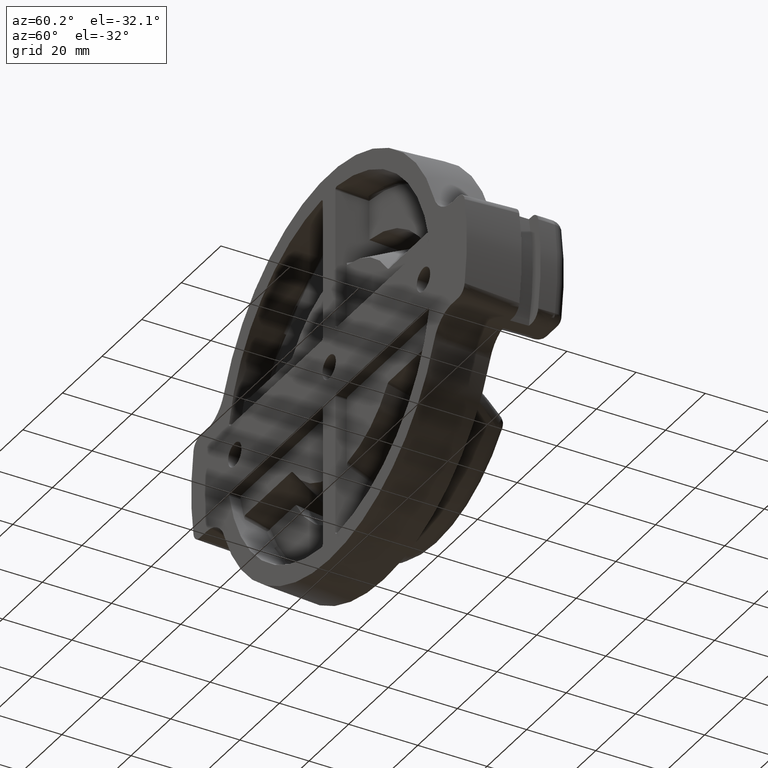
[diagram: clean part render]
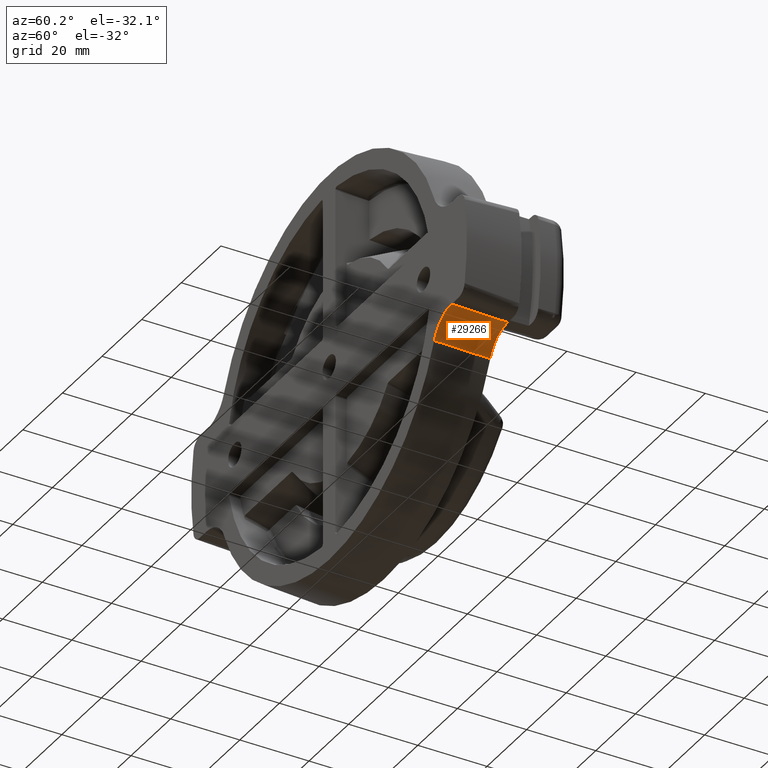
[diagram: same view with one face highlighted and labeled with its STEP entity id]
A machine part, auxiliary view. The second image highlights one B-rep face of the part: STEP entity #29266.
In plain terms, the highlighted face is a freeform B-spline surface patch.
Its self-contained STEP definition (entity closure, byte-faithful):
#1251 = CARTESIAN_POINT ( 'NONE',  ( 2.436986934027818700, 0.0000000000000000000, -0.5922451379481056300 ) ) ;
#1264 = CARTESIAN_POINT ( 'NONE',  ( 2.440569537981420300, 0.1006603059446233300, -0.5975205210446148400 ) ) ;
#1265 = CARTESIAN_POINT ( 'NONE',  ( 2.444144251946057000, 0.2013208922336435500, -0.6027959188333513700 ) ) ;
#1266 = CARTESIAN_POINT ( 'NONE',  ( 2.447711178982137500, 0.3019817533886757800, -0.6080713310272051200 ) ) ;
#1267 = CARTESIAN_POINT ( 'NONE',  ( 2.451526561823576400, 0.4096541892334511500, -0.6137142042798255900 ) ) ;
#1268 = CARTESIAN_POINT ( 'NONE',  ( 2.455333035201659800, 0.5173269402790694500, -0.6193570940514221400 ) ) ;
#1269 = CARTESIAN_POINT ( 'NONE',  ( 2.459130722433051200, 0.6250000000000000000, -0.6250000000000064400 ) ) ;
#5266 = CARTESIAN_POINT ( 'NONE',  ( 2.112204731012433900, 0.6250000000000000000, -0.8584819009674536900 ) ) ;
#5275 = CARTESIAN_POINT ( 'NONE',  ( 2.104466355118057600, 0.4166660003576522800, -0.8485239267894930700 ) ) ;
#5277 = CARTESIAN_POINT ( 'NONE',  ( 2.096694901257117200, 0.2083326584182586800, -0.8385778323933280600 ) ) ;
#5279 = CARTESIAN_POINT ( 'NONE',  ( 2.088889589663732900, 0.0000000000000000000, -0.8286440684792545400 ) ) ;
#8338 = B_SPLINE_SURFACE_WITH_KNOTS ( 'NONE', 3, 3, ( 
 ( #32603, #32550, #32552, #32605, #32606, #32607, #32608, #32609, #32610, #32611, #32612, #32613, #32614 ),
 ( #32615, #32616, #32617, #32618, #32619, #32620, #32621, #32622, #32623, #32624, #32625, #32626, #32627 ),
 ( #32628, #32629, #32630, #32631, #32632, #32633, #32634, #32635, #32636, #32637, #32638, #32639, #32640 ),
 ( #32641, #32642, #32643, #32644, #32645, #32646, #32647, #32648, #32649, #32650, #32651, #32652, #32653 ) ),
 .UNSPECIFIED., .F., .F., .F.,
 ( 4, 4 ),
 ( 4, 3, 3, 3, 4 ),
 ( 0.1190072483107022100, 0.1352134919682050600 ),
 ( 0.0000000000000000000, 0.2500000000000000000, 0.5000000000000000000, 0.7500000000000000000, 1.000000000000000000 ),
 .UNSPECIFIED. ) ;
#8530 = EDGE_LOOP ( 'NONE', ( #15481, #15558, #15559, #15560 ) ) ;
#13693 = CARTESIAN_POINT ( 'NONE',  ( 2.436986934027818700, 0.0000000000000000000, -0.5922451379481056300 ) ) ;
#13726 = CARTESIAN_POINT ( 'NONE',  ( 2.112204731012433900, 0.6250000000000000000, -0.8584819009674536900 ) ) ;
#13741 = CARTESIAN_POINT ( 'NONE',  ( 2.088889589663732900, 0.0000000000000000000, -0.8286440684792545400 ) ) ;
#15075 = CARTESIAN_POINT ( 'NONE',  ( 2.459130722433051200, 0.6250000000000000000, -0.6250000000000064400 ) ) ;
#15481 = ORIENTED_EDGE ( 'NONE', *, *, #24506, .F. ) ;
#15558 = ORIENTED_EDGE ( 'NONE', *, *, #16453, .F. ) ;
#15559 = ORIENTED_EDGE ( 'NONE', *, *, #24478, .F. ) ;
#15560 = ORIENTED_EDGE ( 'NONE', *, *, #20814, .F. ) ;
#16311 = VERTEX_POINT ( 'NONE', #15075 ) ;
#16453 = EDGE_CURVE ( 'NONE', #30883, #16311, #23767, .T. ) ;
#20814 = EDGE_CURVE ( 'NONE', #30921, #30936, #23785, .T. ) ;
#23134 = CARTESIAN_POINT ( 'NONE',  ( 2.088889589663732900, 0.0000000000000000000, -0.8286440684792545400 ) ) ;
#23153 = CARTESIAN_POINT ( 'NONE',  ( 2.102737144904289300, 1.232190374805177100E-017, -0.7937364222598402000 ) ) ;
#23154 = CARTESIAN_POINT ( 'NONE',  ( 2.121367485787964300, -1.753782618170734000E-049, -0.7617364369875544400 ) ) ;
#23155 = CARTESIAN_POINT ( 'NONE',  ( 2.150536434158805100, -0.0000000000000000000, -0.7253117815875670400 ) ) ;
#23156 = CARTESIAN_POINT ( 'NONE',  ( 2.156694658052362300, 0.0000000000000000000, -0.7181862533661134100 ) ) ;
#23157 = CARTESIAN_POINT ( 'NONE',  ( 2.169428511867713500, -0.0000000000000000000, -0.7045238832718279100 ) ) ;
#23158 = CARTESIAN_POINT ( 'NONE',  ( 2.176018730079685200, 0.0000000000000000000, -0.6979648526940111000 ) ) ;
#23159 = CARTESIAN_POINT ( 'NONE',  ( 2.196445058766729500, -0.0000000000000000000, -0.6790869171301181500 ) ) ;
#23160 = CARTESIAN_POINT ( 'NONE',  ( 2.210933303727601100, 0.0000000000000000000, -0.6675628541799716300 ) ) ;
#23161 = CARTESIAN_POINT ( 'NONE',  ( 2.241663371709737200, -0.0000000000000000000, -0.6466520444100752900 ) ) ;
#23162 = CARTESIAN_POINT ( 'NONE',  ( 2.258033575281286300, 0.0000000000000000000, -0.6372202176980068500 ) ) ;
#23163 = CARTESIAN_POINT ( 'NONE',  ( 2.291566538944426400, -0.0000000000000000000, -0.6211128706803062900 ) ) ;
#23164 = CARTESIAN_POINT ( 'NONE',  ( 2.308807626276631700, 0.0000000000000000000, -0.6143609182576128500 ) ) ;
#23165 = CARTESIAN_POINT ( 'NONE',  ( 2.344228569363141700, -0.0000000000000000000, -0.6034318142698456000 ) ) ;
#23166 = CARTESIAN_POINT ( 'NONE',  ( 2.362513348635344900, 0.0000000000000000000, -0.5992405687449037200 ) ) ;
#23167 = CARTESIAN_POINT ( 'NONE',  ( 2.399560025579615000, -0.0000000000000000000, -0.5936477145369117900 ) ) ;
#23168 = CARTESIAN_POINT ( 'NONE',  ( 2.418209843947788600, -0.0000000000000000000, -0.5922451379481058500 ) ) ;
#23169 = CARTESIAN_POINT ( 'NONE',  ( 2.436986934027818700, 0.0000000000000000000, -0.5922451379481056300 ) ) ;
#23339 = CARTESIAN_POINT ( 'NONE',  ( 2.459130722433051200, 0.6250000000000000000, -0.6250000000000064400 ) ) ;
#23357 = CARTESIAN_POINT ( 'NONE',  ( 2.421840831955179400, 0.6250000000000000000, -0.6250000000000063300 ) ) ;
#23358 = CARTESIAN_POINT ( 'NONE',  ( 2.385477270965588000, 0.6250000000000000000, -0.6304424055403699000 ) ) ;
#23359 = CARTESIAN_POINT ( 'NONE',  ( 2.341160904247758400, 0.6250000000000000000, -0.6439319290572184100 ) ) ;
#23360 = CARTESIAN_POINT ( 'NONE',  ( 2.332323030559560800, 0.6249999999999998900, -0.6469855262218715500 ) ) ;
#23361 = CARTESIAN_POINT ( 'NONE',  ( 2.315026420597074500, 0.6250000000000000000, -0.6536934283222882700 ) ) ;
#23362 = CARTESIAN_POINT ( 'NONE',  ( 2.306546546735167800, 0.6250000000000000000, -0.6573513026875160700 ) ) ;
#23363 = CARTESIAN_POINT ( 'NONE',  ( 2.281601258773312800, 0.6250000000000000000, -0.6692169195803187000 ) ) ;
#23364 = CARTESIAN_POINT ( 'NONE',  ( 2.265627552422548900, 0.6250000000000000000, -0.6783119176800305200 ) ) ;
#23365 = CARTESIAN_POINT ( 'NONE',  ( 2.235000094123376500, 0.6250000000000000000, -0.6988836882167450700 ) ) ;
#23366 = CARTESIAN_POINT ( 'NONE',  ( 2.220248488487137200, 0.6249999999999998900, -0.7104669180611262700 ) ) ;
#23367 = CARTESIAN_POINT ( 'NONE',  ( 2.192958125883834400, 0.6250000000000000000, -0.7353907143057257800 ) ) ;
#23368 = CARTESIAN_POINT ( 'NONE',  ( 2.180335107040676700, 0.6250000000000001100, -0.7487623624952507400 ) ) ;
#23369 = CARTESIAN_POINT ( 'NONE',  ( 2.157105918611752900, 0.6250000000000000000, -0.7773007049868342300 ) ) ;
#23370 = CARTESIAN_POINT ( 'NONE',  ( 2.146456081450194300, 0.6249999999999998900, -0.7925426607195189500 ) ) ;
#23371 = CARTESIAN_POINT ( 'NONE',  ( 2.127481694984084900, 0.6250000000000000000, -0.8245677344028095000 ) ) ;
#23372 = CARTESIAN_POINT ( 'NONE',  ( 2.119225102869069000, 0.6249999999999998900, -0.8412090118915833700 ) ) ;
#23373 = CARTESIAN_POINT ( 'NONE',  ( 2.112204731012433900, 0.6250000000000000000, -0.8584819009674536900 ) ) ;
#23767 = B_SPLINE_CURVE_WITH_KNOTS ( 'NONE', 3,
 ( #1251, #1264, #1265, #1266, #1267, #1268, #1269 ),
 .UNSPECIFIED., .F., .F.,
 ( 4, 3, 4 ),
 ( 0.0000000000000000000, 0.007685691526802416500, 0.01590673313776113200 ),
 .UNSPECIFIED. ) ;
#23785 = B_SPLINE_CURVE_WITH_KNOTS ( 'NONE', 3,
 ( #5266, #5275, #5277, #5279 ),
 .UNSPECIFIED., .F., .F.,
 ( 4, 4 ),
 ( 0.0000000000000000000, 0.01590410999722458700 ),
 .UNSPECIFIED. ) ;
#24478 = EDGE_CURVE ( 'NONE', #30936, #30883, #27633, .T. ) ;
#24506 = EDGE_CURVE ( 'NONE', #16311, #30921, #32965, .T. ) ;
#27633 = B_SPLINE_CURVE_WITH_KNOTS ( 'NONE', 3,
 ( #23134, #23153, #23154, #23155, #23156, #23157, #23158, #23159, #23160, #23161, #23162, #23163, #23164, #23165, #23166, #23167, #23168, #23169 ),
 .UNSPECIFIED., .F., .F.,
 ( 4, 2, 2, 2, 2, 2, 2, 2, 4 ),
 ( 0.0000000000000000000, 0.002821040005293088800, 0.003526300006616362800, 0.004231560007939636500, 0.005642080010586177600, 0.007052600013232719600, 0.008463120015879260800, 0.009873640018525803700, 0.01128416002117234500 ),
 .UNSPECIFIED. ) ;
#29266 = ADVANCED_FACE ( 'NONE', ( #30767 ), #8338, .F. ) ;
#30767 = FACE_OUTER_BOUND ( 'NONE', #8530, .T. ) ;
#30883 = VERTEX_POINT ( 'NONE', #13693 ) ;
#30921 = VERTEX_POINT ( 'NONE', #13726 ) ;
#30936 = VERTEX_POINT ( 'NONE', #13741 ) ;
#32550 = CARTESIAN_POINT ( 'NONE',  ( 2.126319193002448300, 0.6300746327877119200, -0.8244659845483537400 ) ) ;
#32552 = CARTESIAN_POINT ( 'NONE',  ( 2.145384347311856600, 0.6310856664937996000, -0.7923441191229603200 ) ) ;
#32603 = CARTESIAN_POINT ( 'NONE',  ( 2.112344958533849000, 0.6287753290498676600, -0.8586623559074957300 ) ) ;
#32605 = CARTESIAN_POINT ( 'NONE',  ( 2.168717618273736700, 0.6317647965450622300, -0.7636830570018199300 ) ) ;
#32606 = CARTESIAN_POINT ( 'NONE',  ( 2.192050889235616300, 0.6324439265963247600, -0.7350219948806794300 ) ) ;
#32607 = CARTESIAN_POINT ( 'NONE',  ( 2.219646353939407600, 0.6327909806025917600, -0.7098290113792744500 ) ) ;
#32608 = CARTESIAN_POINT ( 'NONE',  ( 2.250313062866764900, 0.6327909806025917600, -0.6891913710857805500 ) ) ;
#32609 = CARTESIAN_POINT ( 'NONE',  ( 2.280979771794122300, 0.6327909806025917600, -0.6685537307922865300 ) ) ;
#32610 = CARTESIAN_POINT ( 'NONE',  ( 2.314709940516774400, 0.6324439265963247600, -0.6524766723591762800 ) ) ;
#32611 = CARTESIAN_POINT ( 'NONE',  ( 2.350047861416635400, 0.6317647965450622300, -0.6416540404164582400 ) ) ;
#32612 = CARTESIAN_POINT ( 'NONE',  ( 2.385385782316496800, 0.6310856664937996000, -0.6308314084737403100 ) ) ;
#32613 = CARTESIAN_POINT ( 'NONE',  ( 2.422322485226237700, 0.6300746327877119200, -0.6252659502350874600 ) ) ;
#32614 = CARTESIAN_POINT ( 'NONE',  ( 2.459263876731893700, 0.6287753290498676600, -0.6251978566115729000 ) ) ;
#32615 = CARTESIAN_POINT ( 'NONE',  ( 2.104461259123034700, 0.4165179333347260300, -0.8485167049186530500 ) ) ;
#32616 = CARTESIAN_POINT ( 'NONE',  ( 2.118372449767844700, 0.4178242786462807400, -0.8141997722221234700 ) ) ;
#32617 = CARTESIAN_POINT ( 'NONE',  ( 2.137404795069465500, 0.4188409707677181500, -0.7819529618751490700 ) ) ;
#32618 = CARTESIAN_POINT ( 'NONE',  ( 2.160733043156704400, 0.4195239269299076400, -0.7531744748698107100 ) ) ;
#32619 = CARTESIAN_POINT ( 'NONE',  ( 2.184061291243943900, 0.4202068830920970800, -0.7243959878644723500 ) ) ;
#32620 = CARTESIAN_POINT ( 'NONE',  ( 2.211679464230156700, 0.4205559282964250200, -0.6990931984185047000 ) ) ;
#32621 = CARTESIAN_POINT ( 'NONE',  ( 2.242390038778688600, 0.4205559282964250200, -0.6783632168510614900 ) ) ;
#32622 = CARTESIAN_POINT ( 'NONE',  ( 2.273100613327220500, 0.4205559282964250200, -0.6576332352836182800 ) ) ;
#32623 = CARTESIAN_POINT ( 'NONE',  ( 2.306895719944660300, 0.4202068830920971400, -0.6414813734396043200 ) ) ;
#32624 = CARTESIAN_POINT ( 'NONE',  ( 2.342310011126861100, 0.4195239269299076400, -0.6306079632008065900 ) ) ;
#32625 = CARTESIAN_POINT ( 'NONE',  ( 2.377724302309062000, 0.4188409707677182000, -0.6197345529620088600 ) ) ;
#32626 = CARTESIAN_POINT ( 'NONE',  ( 2.414748703311376600, 0.4178242786462808000, -0.6141423805224960300 ) ) ;
#32627 = CARTESIAN_POINT ( 'NONE',  ( 2.451777848575851700, 0.4165179333347260300, -0.6140739178657406100 ) ) ;
#32628 = CARTESIAN_POINT ( 'NONE',  ( 2.096543246088089100, 0.2042616794543710100, -0.8383834045002150900 ) ) ;
#32629 = CARTESIAN_POINT ( 'NONE',  ( 2.110389857289867600, 0.2055751820355900500, -0.8039447314479258900 ) ) ;
#32630 = CARTESIAN_POINT ( 'NONE',  ( 2.129388298562886500, 0.2065976281661779100, -0.7715715557690785400 ) ) ;
#32631 = CARTESIAN_POINT ( 'NONE',  ( 2.152710881574806800, 0.2072844754523903700, -0.7426742119222391500 ) ) ;
#32632 = CARTESIAN_POINT ( 'NONE',  ( 2.176033464586727600, 0.2079713227386028300, -0.7137768680753997500 ) ) ;
#32633 = CARTESIAN_POINT ( 'NONE',  ( 2.203674155464836900, 0.2083223934940478300, -0.6883628318777442700 ) ) ;
#32634 = CARTESIAN_POINT ( 'NONE',  ( 2.234428771906102500, 0.2083223934940478300, -0.6675392609232053700 ) ) ;
#32635 = CARTESIAN_POINT ( 'NONE',  ( 2.265183388347368000, 0.2083223934940478300, -0.6467156899686665700 ) ) ;
#32636 = CARTESIAN_POINT ( 'NONE',  ( 2.299043973842292300, 0.2079713227386028300, -0.6304879713480373600 ) ) ;
#32637 = CARTESIAN_POINT ( 'NONE',  ( 2.334535380942258000, 0.2072844754523903700, -0.6195630614631261200 ) ) ;
#32638 = CARTESIAN_POINT ( 'NONE',  ( 2.370026788042223200, 0.2065976281661779100, -0.6086381515782149900 ) ) ;
#32639 = CARTESIAN_POINT ( 'NONE',  ( 2.407139834852916500, 0.2055751820355900500, -0.6030188767142977700 ) ) ;
#32640 = CARTESIAN_POINT ( 'NONE',  ( 2.444257682986676400, 0.2042616794543710100, -0.6029500389609335800 ) ) ;
#32641 = CARTESIAN_POINT ( 'NONE',  ( 2.088590100420819200, -0.007993265224209327600, -0.8282629378746632100 ) ) ;
#32642 = CARTESIAN_POINT ( 'NONE',  ( 2.102370513419057100, -0.006672483720960554200, -0.7937013158493000400 ) ) ;
#32643 = CARTESIAN_POINT ( 'NONE',  ( 2.121333890423374900, -0.005644182943028167900, -0.7612003070018095200 ) ) ;
#32644 = CARTESIAN_POINT ( 'NONE',  ( 2.144650122252274500, -0.004953376071182104300, -0.7321826213192430500 ) ) ;
#32645 = CARTESIAN_POINT ( 'NONE',  ( 2.167966354081174000, -0.004262569199336041500, -0.7031649356366765900 ) ) ;
#32646 = CARTESIAN_POINT ( 'NONE',  ( 2.195629349822295900, -0.003909436693444099500, -0.6776381534253910200 ) ) ;
#32647 = CARTESIAN_POINT ( 'NONE',  ( 2.226428180285800800, -0.003909436693444099500, -0.6567196925526196400 ) ) ;
#32648 = CARTESIAN_POINT ( 'NONE',  ( 2.257227010749306200, -0.003909436693444098700, -0.6358012316798481400 ) ) ;
#32649 = CARTESIAN_POINT ( 'NONE',  ( 2.291153630339384200, -0.004262569199336045000, -0.6194965566868938500 ) ) ;
#32650 = CARTESIAN_POINT ( 'NONE',  ( 2.326722923909480700, -0.004953376071182106900, -0.6085193938478226100 ) ) ;
#32651 = CARTESIAN_POINT ( 'NONE',  ( 2.362292217479577500, -0.005644182943028168800, -0.5975422310087513700 ) ) ;
#32652 = CARTESIAN_POINT ( 'NONE',  ( 2.399494893243121500, -0.006672483720960549800, -0.5918954478939878500 ) ) ;
#32653 = CARTESIAN_POINT ( 'NONE',  ( 2.436702428879399500, -0.007993265224209322400, -0.5918262286684844400 ) ) ;
#32965 = B_SPLINE_CURVE_WITH_KNOTS ( 'NONE', 3,
 ( #23339, #23357, #23358, #23359, #23360, #23361, #23362, #23363, #23364, #23365, #23366, #23367, #23368, #23369, #23370, #23371, #23372, #23373 ),
 .UNSPECIFIED., .F., .F.,
 ( 4, 2, 2, 2, 2, 2, 2, 2, 4 ),
 ( 0.0000000000000000000, 0.002801203840319511400, 0.003501504800399383800, 0.004201805760479257100, 0.005602407680638983800, 0.007003009600798710400, 0.008403611520958437900, 0.009804213441118165400, 0.01120481536127789100 ),
 .UNSPECIFIED. ) ;